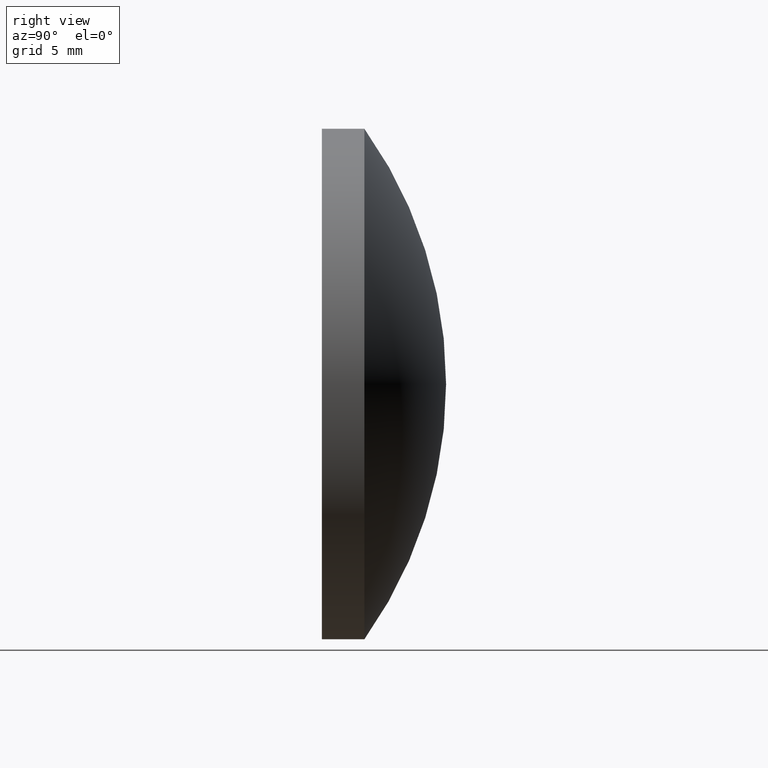
[diagram: clean part render]
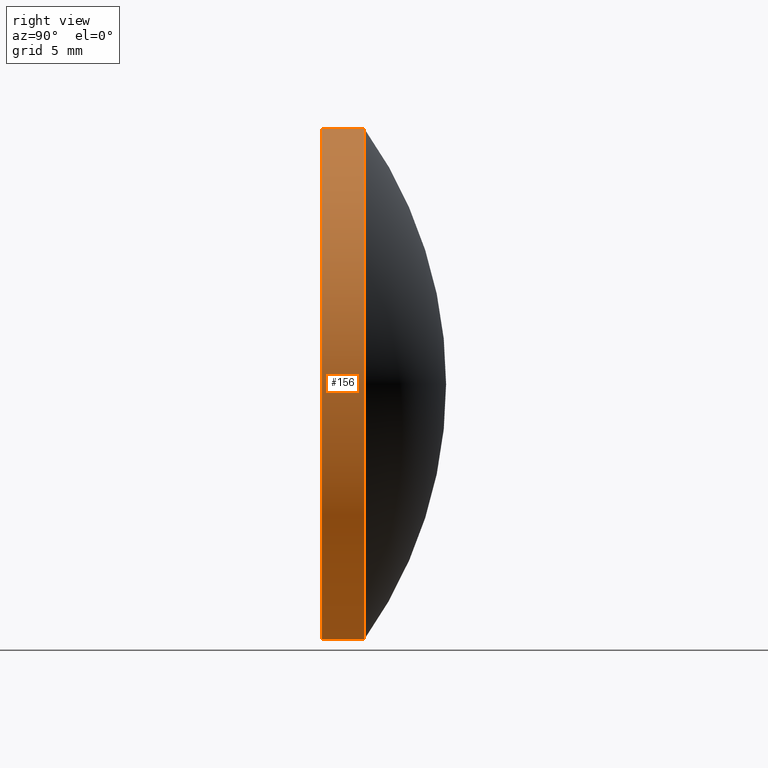
[diagram: same view with one face highlighted and labeled with its STEP entity id]
A machine part, right view. The second image highlights one B-rep face of the part: STEP entity #156.
In plain terms, the highlighted cylindrical surface (partial cylindrical patch) has radius 15 mm, axis along (-0, 1, -0).
Its self-contained STEP definition (entity closure, byte-faithful):
#3 = ORIENTED_EDGE ( 'NONE', *, *, #199, .F. ) ;
#5 = AXIS2_PLACEMENT_3D ( 'NONE', #71, #136, #40 ) ;
#10 = CARTESIAN_POINT ( 'NONE',  ( 0.000000000000000000, -1.734723475976807094E-15, 0.000000000000000000 ) ) ;
#11 = CIRCLE ( 'NONE', #55, 15.00000000000000000 ) ;
#13 = ORIENTED_EDGE ( 'NONE', *, *, #50, .T. ) ;
#14 = CYLINDRICAL_SURFACE ( 'NONE', #183, 15.00000000000000000 ) ;
#27 = CARTESIAN_POINT ( 'NONE',  ( 0.000000000000000000, -1.734723475976807094E-15, 15.00000000000000000 ) ) ;
#29 = DIRECTION ( 'NONE',  ( -0.000000000000000000, 1.000000000000000000, -0.000000000000000000 ) ) ;
#32 = ORIENTED_EDGE ( 'NONE', *, *, #173, .F. ) ;
#35 = FACE_OUTER_BOUND ( 'NONE', #178, .T. ) ;
#40 = DIRECTION ( 'NONE',  ( 0.000000000000000000, 0.000000000000000000, 1.000000000000000000 ) ) ;
#45 = CARTESIAN_POINT ( 'NONE',  ( 0.000000000000000000, 2.499999999999998224, 15.00000000000000178 ) ) ;
#50 = EDGE_CURVE ( 'NONE', #70, #169, #11, .T. ) ;
#55 = AXIS2_PLACEMENT_3D ( 'NONE', #10, #69, #193 ) ;
#57 = CARTESIAN_POINT ( 'NONE',  ( 0.000000000000000000, 7.299999999999999822, 15.00000000000000000 ) ) ;
#58 = CARTESIAN_POINT ( 'NONE',  ( 1.836970198721029589E-15, 7.299999999999999822, -15.00000000000000000 ) ) ;
#61 = ORIENTED_EDGE ( 'NONE', *, *, #108, .T. ) ;
#69 = DIRECTION ( 'NONE',  ( -0.000000000000000000, 1.000000000000000000, -0.000000000000000000 ) ) ;
#70 = VERTEX_POINT ( 'NONE', #27 ) ;
#71 = CARTESIAN_POINT ( 'NONE',  ( 0.000000000000000000, 2.499999999999997780, 0.000000000000000000 ) ) ;
#82 = DIRECTION ( 'NONE',  ( -0.000000000000000000, 1.000000000000000000, -0.000000000000000000 ) ) ;
#85 = VERTEX_POINT ( 'NONE', #45 ) ;
#89 = DIRECTION ( 'NONE',  ( -0.000000000000000000, 1.000000000000000000, -0.000000000000000000 ) ) ;
#98 = LINE ( 'NONE', #58, #201 ) ;
#100 = VERTEX_POINT ( 'NONE', #191 ) ;
#108 = EDGE_CURVE ( 'NONE', #169, #100, #98, .T. ) ;
#115 = VECTOR ( 'NONE', #82, 1000.000000000000000 ) ;
#120 = CARTESIAN_POINT ( 'NONE',  ( 0.000000000000000000, 7.299999999999999822, 0.000000000000000000 ) ) ;
#136 = DIRECTION ( 'NONE',  ( -0.000000000000000000, 1.000000000000000000, -0.000000000000000000 ) ) ;
#144 = LINE ( 'NONE', #57, #115 ) ;
#156 = ADVANCED_FACE ( 'NONE', ( #35 ), #14, .T. ) ;
#168 = CIRCLE ( 'NONE', #5, 15.00000000000000000 ) ;
#169 = VERTEX_POINT ( 'NONE', #200 ) ;
#173 = EDGE_CURVE ( 'NONE', #85, #100, #168, .T. ) ;
#178 = EDGE_LOOP ( 'NONE', ( #13, #61, #32, #3 ) ) ;
#183 = AXIS2_PLACEMENT_3D ( 'NONE', #120, #89, #185 ) ;
#185 = DIRECTION ( 'NONE',  ( 0.000000000000000000, 0.000000000000000000, 1.000000000000000000 ) ) ;
#191 = CARTESIAN_POINT ( 'NONE',  ( 1.836970198721029589E-15, 2.499999999999998224, -15.00000000000000178 ) ) ;
#193 = DIRECTION ( 'NONE',  ( 0.000000000000000000, 0.000000000000000000, 1.000000000000000000 ) ) ;
#199 = EDGE_CURVE ( 'NONE', #70, #85, #144, .T. ) ;
#200 = CARTESIAN_POINT ( 'NONE',  ( 1.836970198721029589E-15, -1.734723475976807094E-15, -15.00000000000000000 ) ) ;
#201 = VECTOR ( 'NONE', #29, 1000.000000000000000 ) ;